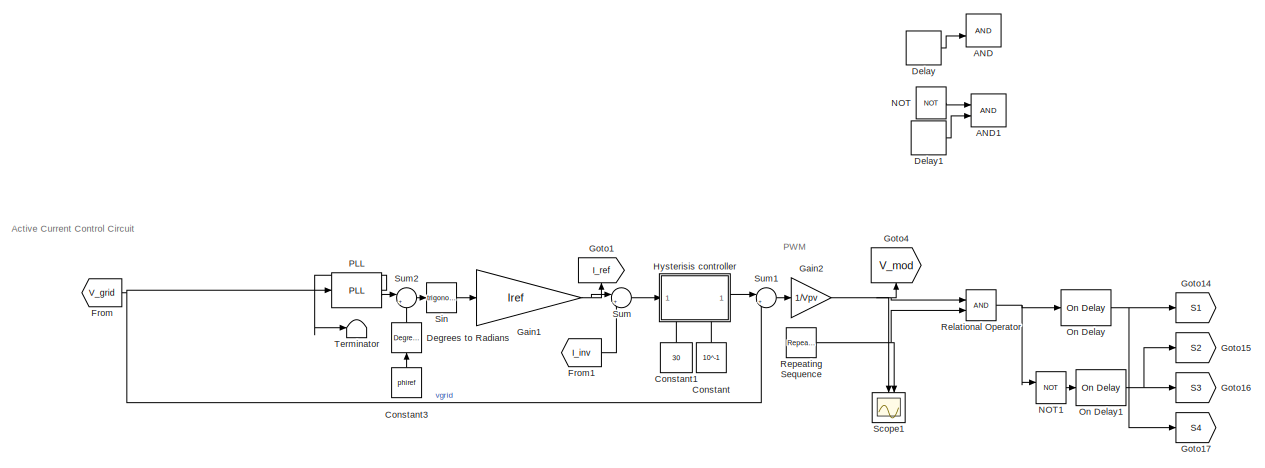
[diagram: root canvas - part 1/4, top left region]
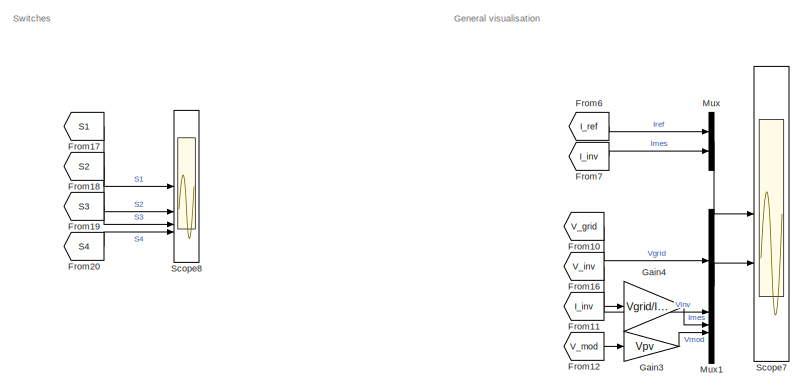
[diagram: root canvas - part 2/4, top right region]
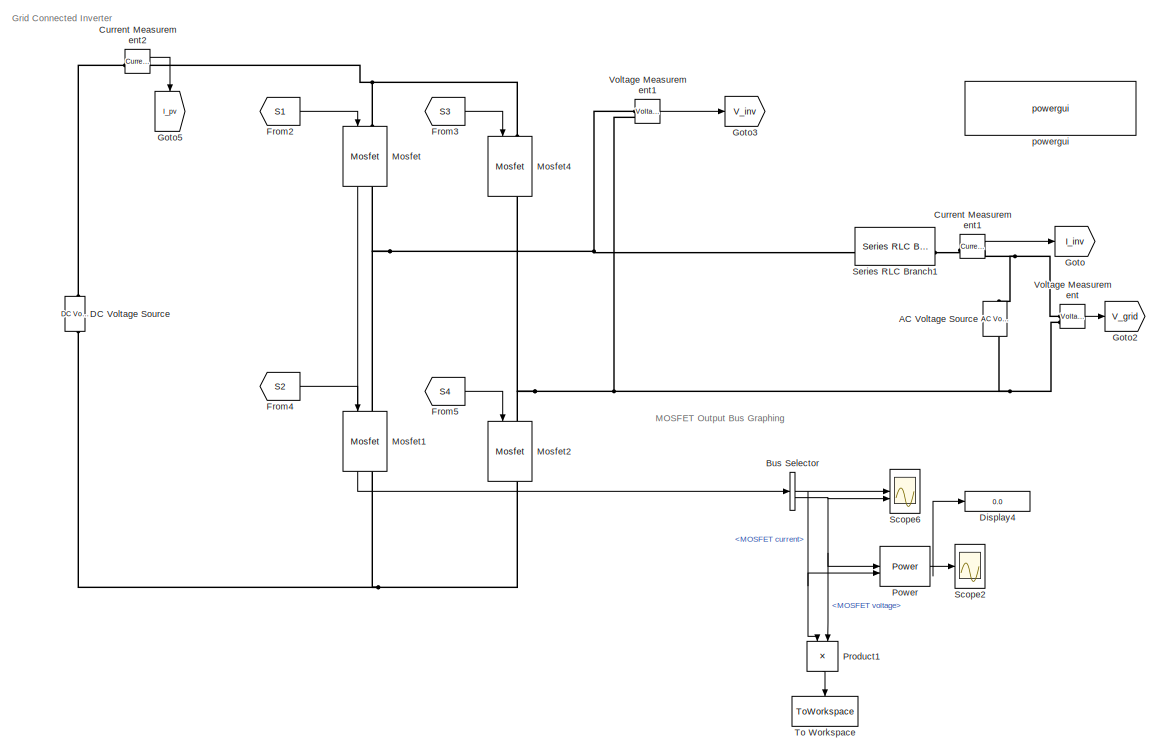
[diagram: root canvas - part 3/4, bottom left region]
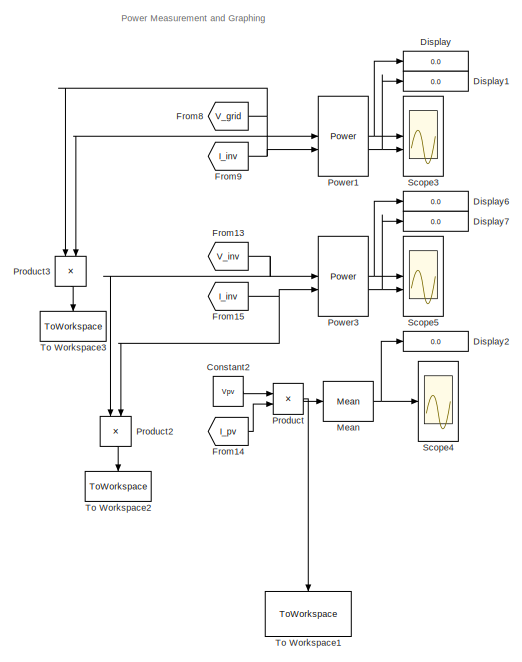
[diagram: root canvas - part 4/4, bottom right region]
MODEL slx_183eb74200bf
KIND model
CONFIG AbsTol = auto
CONFIG EnableMultiTasking = off
CONFIG FixedStep = 1e-6
CONFIG MaxStep = auto
CONFIG MinStep = auto
CONFIG RelTol = 1e-3
CONFIG SampleTimeConstraint = Unconstrained
CONFIG SolverName = ode4
CONFIG StartTime = 0.0
CONFIG StopTime = 0.1
BLOCK [Reference] AC Voltage Source  REF=spsACVoltageSourceLib/AC Voltage Source
  SourceBlock = spsACVoltageSourceLib/AC Voltage Source
  SourceType = AC Voltage Source
BLOCK [Logic] AND
  AllPortsSameDT = off
  Commented = on
  OutDataTypeStr = boolean
BLOCK [Logic] AND1
  AllPortsSameDT = off
  Commented = on
  OutDataTypeStr = boolean
BLOCK [BusSelector] Bus Selector
  OutputSignals = MOSFET current,MOSFET voltage
BLOCK [Constant] Constant
  NameLocation = right
  Value = 10^-1
BLOCK [Constant] Constant1
  NameLocation = right
  Value = 30
BLOCK [Constant] Constant2
  Value = Vpv
BLOCK [Constant] Constant3
  NameLocation = right
  Value = phiref
BLOCK [Reference] Current Measurement1  REF=spsCurrentMeasurementLib/Current Measurement
  SourceBlock = spsCurrentMeasurementLib/Current Measurement
  SourceType = Current Measurement
  UserDataPersistent = on
BLOCK [Reference] Current Measurement2  REF=spsCurrentMeasurementLib/Current Measurement
  SourceBlock = spsCurrentMeasurementLib/Current Measurement
  SourceType = Current Measurement
  UserDataPersistent = on
BLOCK [Reference] DC Voltage Source  REF=spsDCVoltageSourceLib/DC Voltage Source
  SourceBlock = spsDCVoltageSourceLib/DC Voltage Source
  SourceType = DC Voltage Source
BLOCK [Reference] Degrees to Radians  REF=simulink_extras/Transformations/Degrees to
Radians
  NameLocation = right
  SourceBlock = simulink_extras/Transformations/Degrees to\nRadians
  SourceType = DegreesToRadians
BLOCK [Delay] Delay
  Commented = on
  DelayLength = 3
  InputPortMap = u0
  SampleTime = 1e-6
BLOCK [Delay] Delay1
  Commented = on
  DelayLength = 3
  InputPortMap = u0
  SampleTime = 1e-6
BLOCK [Display] Display
  Decimation = 1
BLOCK [Display] Display1
  Decimation = 1
BLOCK [Display] Display2
  Decimation = 1
BLOCK [Display] Display4
  Decimation = 1
BLOCK [Display] Display6
  Decimation = 1
BLOCK [Display] Display7
  Decimation = 1
BLOCK [From] From
  GotoTag = V_grid
BLOCK [From] From1
  GotoTag = I_inv
  TagVisibility = global
BLOCK [From] From10
  GotoTag = V_grid
BLOCK [From] From11
  GotoTag = I_inv
  TagVisibility = global
BLOCK [From] From12
  GotoTag = V_mod
BLOCK [From] From13
  GotoTag = V_inv
BLOCK [From] From14
  GotoTag = I_pv
BLOCK [From] From15
  GotoTag = I_inv
  TagVisibility = global
BLOCK [From] From16
  GotoTag = V_inv
BLOCK [From] From17
  GotoTag = S1
BLOCK [From] From18
  GotoTag = S2
BLOCK [From] From19
  GotoTag = S3
BLOCK [From] From2
  GotoTag = S1
BLOCK [From] From20
  GotoTag = S4
BLOCK [From] From3
  GotoTag = S3
BLOCK [From] From4
  GotoTag = S2
BLOCK [From] From5
  GotoTag = S4
BLOCK [From] From6
  GotoTag = I_ref
BLOCK [From] From7
  GotoTag = I_inv
  TagVisibility = global
BLOCK [From] From8
  GotoTag = V_grid
BLOCK [From] From9
  GotoTag = I_inv
  TagVisibility = global
BLOCK [Gain] Gain1
  Gain = Iref
BLOCK [Gain] Gain2
  Gain = 1/Vpv
BLOCK [Gain] Gain3
  Gain = Vpv
BLOCK [Gain] Gain4
  Gain = Vgrid/Iref
BLOCK [Goto] Goto
  GotoTag = I_inv
  TagVisibility = global
BLOCK [Goto] Goto1
  GotoTag = I_ref
  NameLocation = right
BLOCK [Goto] Goto14
  GotoTag = S1
BLOCK [Goto] Goto15
  GotoTag = S2
BLOCK [Goto] Goto16
  GotoTag = S3
BLOCK [Goto] Goto17
  GotoTag = S4
BLOCK [Goto] Goto2
  GotoTag = V_grid
BLOCK [Goto] Goto3
  GotoTag = V_inv
BLOCK [Goto] Goto4
  GotoTag = V_mod
  NameLocation = right
BLOCK [Goto] Goto5
  GotoTag = I_pv
  NameLocation = left
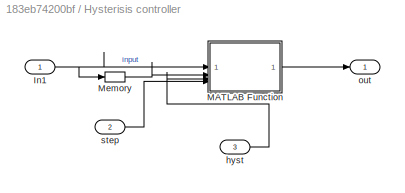
BLOCK [SubSystem] Hysterisis controller
  PortSchema = {"entries":[{"content":{"sides":[{"content":{"connectorIds":["In1"]},"type":"ConnectorPlacement.EquallySpacedRectSide","uuid":"f66aa083-2ee8-4426-b441-0f8ce3c91bc6"},{"content":{"connectorIds":["Out1"],"side":"RIGHT"},"type":"ConnectorPlacement.EquallySpacedRectSide","uuid":"e535ff9d-11f2-429a-8d26-bff265e6dce4"},{"content":{"connectorIds":[],"side":"TOP"},"type":"ConnectorPlacement.EquallySpacedR...<+395ch>
BLOCK [Inport] Hysterisis controller/In1
  IconDisplay = Signal name
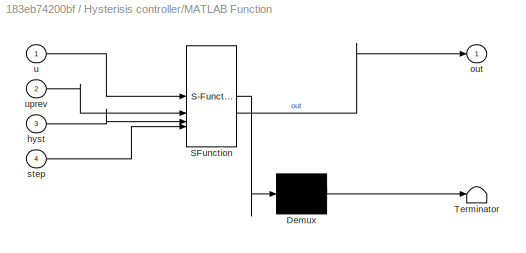
BLOCK [SubSystem] Hysterisis controller/MATLAB Function
  ErrorFcn = Stateflow.Translate.translate
  LibrarySourceBlock = simulink/User-Defined\nFunctions/MATLAB Function
  PermitHierarchicalResolution = ExplicitOnly
  SFBlockType = MATLAB Function
  TreatAsAtomicUnit = on
BLOCK [Demux] Hysterisis controller/MATLAB Function/ Demux 
  Outputs = 1
BLOCK [S-Function] Hysterisis controller/MATLAB Function/ SFunction 
  EnableBusSupport = on
  FunctionName = sf_sfun
  PortCounts = [4 2]
  SFcnIsStateOwnerBlock = off
  SFunctionDeploymentMode = off
  Tag = Stateflow S-Function 2
BLOCK [Terminator] Hysterisis controller/MATLAB Function/ Terminator 
BLOCK [Inport] Hysterisis controller/MATLAB Function/hyst
  Port = 3
BLOCK [Outport] Hysterisis controller/MATLAB Function/out
BLOCK [Inport] Hysterisis controller/MATLAB Function/step
  Port = 4
BLOCK [Inport] Hysterisis controller/MATLAB Function/u
BLOCK [Inport] Hysterisis controller/MATLAB Function/uprev
  Port = 2
BLOCK [Memory] Hysterisis controller/Memory
BLOCK [Inport] Hysterisis controller/hyst
  Port = 3
BLOCK [Outport] Hysterisis controller/out
BLOCK [Inport] Hysterisis controller/step
  Port = 2
BLOCK [Reference] Mean  REF=spsMeanLib/Mean
  LibrarySourceBlock = sps_lib/Sensors and Measurements/Mean
  SourceBlock = spsMeanLib/Mean
  SourceType = Mean
BLOCK [Reference] Mosfet  REF=spsMosfetLib/Mosfet
  LibrarySourceBlock = sps_lib/Power Electronics/Mosfet
  NameLocation = left
  SourceBlock = spsMosfetLib/Mosfet
  SourceType = Mosfet
BLOCK [Reference] Mosfet1  REF=spsMosfetLib/Mosfet
  LibrarySourceBlock = sps_lib/Power Electronics/Mosfet
  NameLocation = left
  SourceBlock = spsMosfetLib/Mosfet
  SourceType = Mosfet
BLOCK [Reference] Mosfet2  REF=spsMosfetLib/Mosfet
  LibrarySourceBlock = sps_lib/Power Electronics/Mosfet
  NameLocation = left
  SourceBlock = spsMosfetLib/Mosfet
  SourceType = Mosfet
BLOCK [Reference] Mosfet4  REF=spsMosfetLib/Mosfet
  LibrarySourceBlock = sps_lib/Power Electronics/Mosfet
  NameLocation = left
  SourceBlock = spsMosfetLib/Mosfet
  SourceType = Mosfet
BLOCK [Mux] Mux
  DisplayOption = bar
  Inputs = 2
BLOCK [Mux] Mux1
  DisplayOption = bar
BLOCK [Logic] NOT
  AllPortsSameDT = off
  Commented = on
  Operator = NOT
  OutDataTypeStr = boolean
BLOCK [Logic] NOT1
  AllPortsSameDT = off
  Operator = NOT
  OutDataTypeStr = boolean
BLOCK [Reference] On Delay  REF=spsOnDelayLib/On Delay
  LibrarySourceBlock = sps_lib/Control/On Delay
  SourceBlock = spsOnDelayLib/On Delay
  SourceType = On/Off Delay
BLOCK [Reference] On Delay1  REF=spsOnDelayLib/On Delay
  LibrarySourceBlock = sps_lib/Control/On Delay
  SourceBlock = spsOnDelayLib/On Delay
  SourceType = On/Off Delay
BLOCK [Reference] PLL  REF=spsPLLLib/PLL
  SourceBlock = spsPLLLib/PLL
  SourceType = PLL
BLOCK [Reference] Power  REF=spsPowerLib/Power
  LibrarySourceBlock = sps_lib/Sensors and Measurements/Power
  SourceBlock = spsPowerLib/Power
  SourceType = Power
BLOCK [Reference] Power1  REF=spsPowerLib/Power
  LibrarySourceBlock = sps_lib/Sensors and Measurements/Power
  SourceBlock = spsPowerLib/Power
  SourceType = Power
BLOCK [Reference] Power3  REF=spsPowerLib/Power
  LibrarySourceBlock = sps_lib/Sensors and Measurements/Power
  SourceBlock = spsPowerLib/Power
  SourceType = Power
BLOCK [Product] Product
BLOCK [Product] Product1
  NameLocation = left
BLOCK [Product] Product2
  NameLocation = left
BLOCK [Product] Product3
  NameLocation = left
BLOCK [RelationalOperator] Relational Operator
  InputSameDT = off
  OutDataTypeStr = boolean
  RndMeth = Simplest
BLOCK [Reference] Repeating Sequence  REF=simulink/Sources/Repeating
Sequence
  SourceBlock = simulink/Sources/Repeating\nSequence
  SourceType = Repeating table
BLOCK [Scope] Scope1
  Floating = off
  NameLocation = left
  NumInputPorts = 2
  ScopeSpecificationString = Simulink.scopes.TimeScopeBlockCfg('CurrentConfiguration', extmgr.ConfigurationSet(extmgr.Configuration('Core','General UI',true),extmgr.Configuration('Core','Source UI',true),extmgr.Configuration('Sources','WiredSimulink',true),extmgr.Configuration('Visuals','Time Domain',true,'SerializedDisplays',{struct('MinYLimReal','-1.1382','MaxYLimReal','0.98886','YLabelReal','','MinYLimMag','0.00000','MaxYL...<+2167ch>
BLOCK [Scope] Scope2
  Floating = off
  NameLocation = top
  NumInputPorts = 1
  ScopeSpecificationString = Simulink.scopes.TimeScopeBlockCfg('CurrentConfiguration', extmgr.ConfigurationSet(extmgr.Configuration('Core','General UI',true),extmgr.Configuration('Core','Source UI',true),extmgr.Configuration('Sources','WiredSimulink',true,'DataLoggingVariableName','ScopeData1'),extmgr.Configuration('Visuals','Time Domain',true,'SerializedDisplays',{struct('MinYLimReal','-118.41362','MaxYLimReal','13.71262','Y...<+1794ch>
BLOCK [Scope] Scope3
  Floating = off
  NameLocation = top
  NumInputPorts = 2
  ScopeSpecificationString = Simulink.scopes.TimeScopeBlockCfg('CurrentConfiguration', extmgr.ConfigurationSet(extmgr.Configuration('Core','General UI',true),extmgr.Configuration('Core','Source UI',true),extmgr.Configuration('Sources','WiredSimulink',true,'DataLoggingVariableName','ScopeData3'),extmgr.Configuration('Visuals','Time Domain',true,'SerializedDisplays',{struct('MinYLimReal','-73.91334','MaxYLimReal','670.22007','Y...<+2411ch>
BLOCK [Scope] Scope4
  Floating = off
  NameLocation = top
  NumInputPorts = 1
  ScopeSpecificationString = Simulink.scopes.TimeScopeBlockCfg('CurrentConfiguration', extmgr.ConfigurationSet(extmgr.Configuration('Core','General UI',true),extmgr.Configuration('Core','Source UI',true),extmgr.Configuration('Sources','WiredSimulink',true,'DataLoggingVariableName','ScopeData4'),extmgr.Configuration('Visuals','Time Domain',true,'SerializedDisplays',{struct('MinYLimReal','-97.85268','MaxYLimReal','880.67414','Y...<+1984ch>
BLOCK [Scope] Scope5
  Floating = off
  NameLocation = top
  NumInputPorts = 2
  ScopeSpecificationString = Simulink.scopes.TimeScopeBlockCfg('CurrentConfiguration', extmgr.ConfigurationSet(extmgr.Configuration('Core','General UI',true),extmgr.Configuration('Core','Source UI',true),extmgr.Configuration('Sources','WiredSimulink',true,'DataLoggingVariableName','ScopeData5'),extmgr.Configuration('Visuals','Time Domain',true,'SerializedDisplays',{struct('MinYLimReal','-73.98467','MaxYLimReal','670.86201','Y...<+2413ch>
BLOCK [Scope] Scope6
  Floating = off
  NameLocation = top
  NumInputPorts = 2
  ScopeSpecificationString = Simulink.scopes.TimeScopeBlockCfg('CurrentConfiguration', extmgr.ConfigurationSet(extmgr.Configuration('Core','General UI',true),extmgr.Configuration('Core','Source UI',true),extmgr.Configuration('Sources','WiredSimulink',true,'DataLoggingVariableName','ScopeData2'),extmgr.Configuration('Visuals','Time Domain',true,'SerializedDisplays',{struct('MinYLimReal','-15.06566','MaxYLimReal','14.89385','YL...<+2107ch>
BLOCK [Scope] Scope7
  Floating = off
  NumInputPorts = 2
  ScopeSpecificationString = Simulink.scopes.TimeScopeBlockCfg('CurrentConfiguration', extmgr.ConfigurationSet(extmgr.Configuration('Core','General UI',true),extmgr.Configuration('Core','Source UI',true),extmgr.Configuration('Sources','WiredSimulink',true,'DataLoggingVariableName','ScopeData2'),extmgr.Configuration('Visuals','Time Domain',true,'SerializedDisplays',{struct('MinYLimReal','-13.5713','MaxYLimReal','8.60122','YLab...<+2586ch>
BLOCK [Scope] Scope8
  Floating = off
  NumInputPorts = 4
  ScopeSpecificationString = Simulink.scopes.TimeScopeBlockCfg('CurrentConfiguration', extmgr.ConfigurationSet(extmgr.Configuration('Core','General UI',true),extmgr.Configuration('Core','Source UI',true),extmgr.Configuration('Sources','WiredSimulink',true,'DataLoggingVariableName','ScopeData6'),extmgr.Configuration('Visuals','Time Domain',true,'SerializedDisplays',{struct('MinYLimReal','-0.125','MaxYLimReal','1.125','YLabelRe...<+1910ch>
BLOCK [Reference] Series RLC Branch1  REF=spsSeriesRLCBranchLib/Series RLC Branch
  SourceBlock = spsSeriesRLCBranchLib/Series RLC Branch
  SourceType = Series RLC Branch
BLOCK [Trigonometry] Sin
BLOCK [Sum] Sum
  Inputs = |+-
BLOCK [Sum] Sum1
  Inputs = |++
BLOCK [Sum] Sum2
  Inputs = |++
BLOCK [Terminator] Terminator
BLOCK [ToWorkspace] To Workspace
  FixptAsFi = on
  MaxDataPoints = inf
  NameLocation = left
  SampleTime = -1
  SaveFormat = Timeseries
  VariableName = Pmosfet
BLOCK [ToWorkspace] To Workspace1
  FixptAsFi = on
  MaxDataPoints = inf
  NameLocation = left
  SampleTime = -1
  SaveFormat = Timeseries
  VariableName = Ppv
BLOCK [ToWorkspace] To Workspace2
  FixptAsFi = on
  MaxDataPoints = inf
  NameLocation = left
  SampleTime = -1
  SaveFormat = Timeseries
  VariableName = Pinv
BLOCK [ToWorkspace] To Workspace3
  FixptAsFi = on
  MaxDataPoints = inf
  NameLocation = left
  SampleTime = -1
  SaveFormat = Timeseries
  VariableName = Pgrid
BLOCK [Reference] Voltage Measurement  REF=spsVoltageMeasurementLib/Voltage Measurement
  SourceBlock = spsVoltageMeasurementLib/Voltage Measurement
  SourceType = Voltage Measurement
  UserDataPersistent = on
BLOCK [Reference] Voltage Measurement1  REF=spsVoltageMeasurementLib/Voltage Measurement
  SourceBlock = spsVoltageMeasurementLib/Voltage Measurement
  SourceType = Voltage Measurement
  UserDataPersistent = on
BLOCK [Reference] powergui  REF=spspowerguiLib/powergui
  Priority = 1
  SourceBlock = spspowerguiLib/powergui
  SourceType = PSB option menu block
ANNOTATION (root): Active Current Control Circuit
ANNOTATION (root): General visualisation
ANNOTATION (root): Grid Connected Inverter
ANNOTATION (root): MOSFET Output Bus Graphing
ANNOTATION (root): PWM
ANNOTATION (root): Power Measurement and Graphing
ANNOTATION (root): Switches
NET Bus Selector:1 -> Power:2, Product1:1, Scope6:1
NET Bus Selector:2 -> Power:1, Product1:2, Scope6:2
LINE Constant1:1 -> Hysterisis controller:2
LINE Constant2:1 -> Product:1
LINE Constant3:1 -> Degrees to Radians:1
LINE Constant:1 -> Hysterisis controller:3
LINE Current Measurement1:1 -> Goto:1
LINE Current Measurement2:1 -> Goto5:1
LINE Degrees to Radians:1 -> Sum2:2
LINE Delay1:1 -> AND1:2
LINE Delay:1 -> AND:2
LINE From10:1 -> Mux1:1
LINE From11:1 -> Gain4:1
LINE From12:1 -> Gain3:1
NET From13:1 -> Power3:1, Product2:1
LINE From14:1 -> Product:2
NET From15:1 -> Power3:2, Product2:2
LINE From16:1 -> Mux1:2
LINE From17:1 -> Scope8:1
LINE From18:1 -> Scope8:2
LINE From19:1 -> Scope8:3
LINE From1:1 -> Sum:2
LINE From20:1 -> Scope8:4
LINE From2:1 -> Mosfet:1
LINE From3:1 -> Mosfet4:1
LINE From4:1 -> Mosfet1:1
LINE From5:1 -> Mosfet2:1
LINE From6:1 -> Mux:1
LINE From7:1 -> Mux:2
NET From8:1 -> Power1:1, Product3:1
NET From9:1 -> Power1:2, Product3:2
NET From:1 -> PLL:1, Sum1:2
NET Gain1:1 -> Goto1:1, Sum:1
NET Gain2:1 -> Goto4:1, Relational Operator:1, Scope1:1
LINE Gain3:1 -> Mux1:4
LINE Gain4:1 -> Mux1:3
NET Hysterisis controller/In1:1 -> Hysterisis controller/MATLAB Function:1, Hysterisis controller/Memory:1
LINE Hysterisis controller/MATLAB Function:1 -> Hysterisis controller/out:1
LINE Hysterisis controller/Memory:1 -> Hysterisis controller/MATLAB Function:2
LINE Hysterisis controller/hyst:1 -> Hysterisis controller/MATLAB Function:3
LINE Hysterisis controller/step:1 -> Hysterisis controller/MATLAB Function:4
LINE Hysterisis controller:1 -> Sum1:1
NET Mean:1 -> Display2:1, Scope4:1
LINE Mosfet:1 -> Bus Selector:1
LINE Mux1:1 -> Scope7:2
LINE Mux:1 -> Scope7:1
LINE NOT1:1 -> On Delay1:1
LINE NOT:1 -> AND1:1
NET On Delay1:1 -> Goto15:1, Goto16:1
NET On Delay:1 -> Goto14:1, Goto17:1
LINE PLL:1 -> Terminator:1
LINE PLL:2 -> Sum2:1
NET Power1:1 -> Display:1, Scope3:1
NET Power1:2 -> Display1:1, Scope3:2
NET Power3:1 -> Display6:1, Scope5:1
NET Power3:2 -> Display7:1, Scope5:2
NET Power:1 -> Display4:1, Scope2:1
LINE Product1:1 -> To Workspace:1
LINE Product2:1 -> To Workspace2:1
LINE Product3:1 -> To Workspace3:1
NET Product:1 -> Mean:1, To Workspace1:1
NET Relational Operator:1 -> NOT1:1, On Delay:1
NET Repeating Sequence:1 -> Relational Operator:2, Scope1:2
LINE Sin:1 -> Gain1:1
LINE Sum1:1 -> Gain2:1
LINE Sum2:1 -> Sin:1
LINE Sum:1 -> Hysterisis controller:1
LINE Voltage Measurement1:1 -> Goto3:1
LINE Voltage Measurement:1 -> Goto2:1
PNET net1: AC Voltage Source:LConn1 -- Mosfet2:LConn1 -- Mosfet4:RConn1 -- Voltage Measurement1:LConn2 -- Voltage Measurement:LConn2
PNET net2: AC Voltage Source:RConn1 -- Current Measurement1:RConn1 -- Voltage Measurement:LConn1
PLINE Current Measurement1:LConn1 -- Series RLC Branch1:RConn1
PLINE Current Measurement2:LConn1 -- DC Voltage Source:RConn1
PNET net3: Current Measurement2:RConn1 -- Mosfet4:LConn1 -- Mosfet:LConn1
PNET net4: DC Voltage Source:LConn1 -- Mosfet1:RConn1 -- Mosfet2:RConn1
PNET net5: Mosfet1:LConn1 -- Mosfet:RConn1 -- Series RLC Branch1:LConn1 -- Voltage Measurement1:LConn1
note: NET lines group one-source signal fan-out (src -> all destinations, sorted); 1:1 wires keep LINE; PNET lines group multi-terminal physical nets as a canonical sorted terminal list (undirected conserving connections); 2-terminal nets keep the pairwise PLINE form
CHART Hysterisis controller/MATLAB Function states=1 transitions=1
  STATE_LABEL 'eML_blk_kernel()'
  STATE_LABEL 'SCRIPT:\nfunction out = hystcontrol(u,uprev,hyst,step)\n\nif u>hyst\n    out= uprev+step;\nelseif u<hyst\n    out= uprev-step;\nelse\n    out=uprev;\n\nend\n'
CHART  states=0 transitions=0
